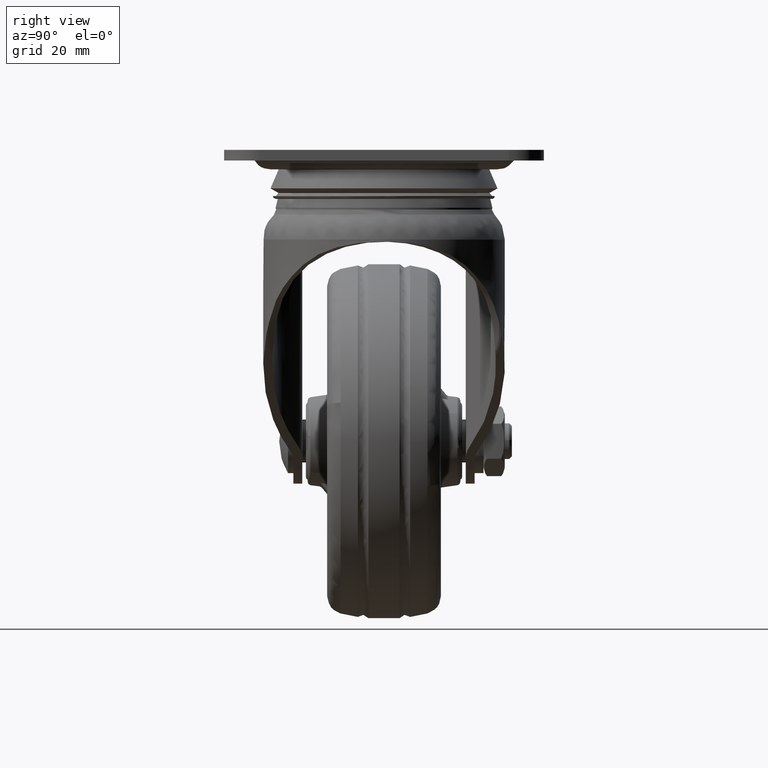
[diagram: clean part render]
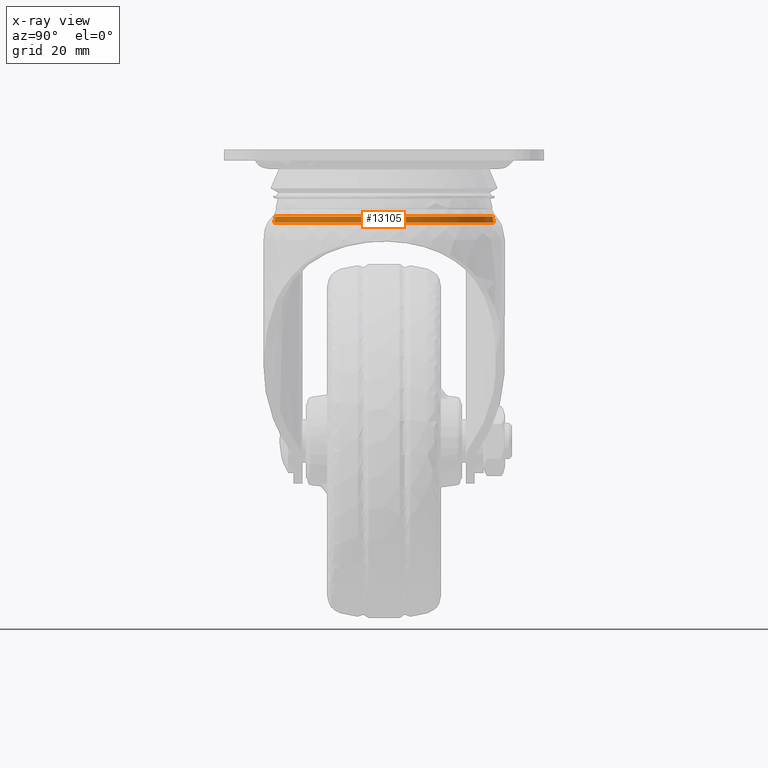
[diagram: x-ray — body ghosted, one internal face saturated and labeled with its STEP entity id]
A machine part, right view, then the same camera in x-ray: the body is ghosted and one INTERNAL B-rep face — a face not visible from any outside direction — is saturated and labeled: STEP entity #13105.
In plain terms, the highlighted face is a freeform B-spline surface patch.
Its self-contained STEP definition (entity closure, byte-faithful):
#12549=CARTESIAN_POINT('',(-1.892504725672829,30.942178751075449,-20.550011000014269));
#12550=VERTEX_POINT('',#12549);
#12564=CARTESIAN_POINT('',(31.0,0.0,-20.550011000000051));
#12565=VERTEX_POINT('',#12564);
#12566=CARTESIAN_POINT('',(-1.892504725672830,30.942178751075442,-20.550011000014269));
#12567=CARTESIAN_POINT('',(-0.947135662302610,31.000000000003158,-20.550011000014063));
#12568=CARTESIAN_POINT('',(-1.868053E-013,31.000000000003109,-20.550011000013850));
#12569=CARTESIAN_POINT('',(30.999999999999908,31.000000000001503,-20.550011000006737));
#12570=CARTESIAN_POINT('',(31.0,0.0,-20.550011000000051));
#12578=(BOUNDED_CURVE()B_SPLINE_CURVE(2,(#12566,#12567,#12568,#12569,#12570),.UNSPECIFIED.,.F.,.U.)B_SPLINE_CURVE_WITH_KNOTS((3,2,3),(0.239332962241455,0.250000000000000,0.500000000000000),.UNSPECIFIED.)CURVE()GEOMETRIC_REPRESENTATION_ITEM()RATIONAL_B_SPLINE_CURVE((0.976072041672101,0.987502787902780,1.0,0.707106781186548,1.0))REPRESENTATION_ITEM(''));
#12579=EDGE_CURVE('',#12550,#12565,#12578,.T.);
#12581=CARTESIAN_POINT('',(1.892504725672829,-30.942178751075449,-20.550011000014269));
#12582=VERTEX_POINT('',#12581);
#12583=CARTESIAN_POINT('',(31.0,0.0,-20.550011000000051));
#12584=CARTESIAN_POINT('',(31.000000000000110,-29.161888073991221,-20.550011000007171));
#12585=CARTESIAN_POINT('',(1.892504725672829,-30.942178751075446,-20.550011000014276));
#12593=(BOUNDED_CURVE()B_SPLINE_CURVE(2,(#12583,#12584,#12585),.UNSPECIFIED.,.F.,.U.)B_SPLINE_CURVE_WITH_KNOTS((3,3),(0.500000000000000,0.739332962241455),.UNSPECIFIED.)CURVE()GEOMETRIC_REPRESENTATION_ITEM()RATIONAL_B_SPLINE_CURVE((1.0,0.719603993283767,0.976072041672102))REPRESENTATION_ITEM(''));
#12594=EDGE_CURVE('',#12565,#12582,#12593,.T.);
#13003=CARTESIAN_POINT('',(1.868389924541956,-30.547905237961931,-18.800011000012329));
#13004=VERTEX_POINT('',#13003);
#13005=CARTESIAN_POINT('',(1.868389924541956,-30.547905237961931,-18.800011000012329));
#13006=CARTESIAN_POINT('',(1.892504725672829,-30.942178751075449,-20.550011000014269));
#13007=QUASI_UNIFORM_CURVE('',1,(#13005,#13006),.UNSPECIFIED.,.F.,.U.);
#13008=EDGE_CURVE('',#13004,#12582,#13007,.T.);
#13027=CARTESIAN_POINT('',(-1.868389924541956,30.547905237961931,-18.800011000012340));
#13028=VERTEX_POINT('',#13027);
#13042=CARTESIAN_POINT('',(-1.868389924541956,30.547905237961931,-18.800011000012340));
#13043=CARTESIAN_POINT('',(-1.892504725672829,30.942178751075449,-20.550011000014269));
#13044=QUASI_UNIFORM_CURVE('',1,(#13042,#13043),.UNSPECIFIED.,.F.,.U.);
#13045=EDGE_CURVE('',#13028,#12550,#13044,.T.);
#13051=CARTESIAN_POINT('',(-1.867787054434637,30.538048400136159,-18.756261000000091));
#13052=CARTESIAN_POINT('',(28.670261345701523,32.405835454570799,-18.756261000000091));
#13053=CARTESIAN_POINT('',(30.538048400136159,1.867787054434637,-18.756261000000091));
#13054=CARTESIAN_POINT('',(32.405835454570799,-28.670261345701523,-18.756261000000091));
#13055=CARTESIAN_POINT('',(1.867787054434637,-30.538048400136159,-18.756261000000091));
#13056=CARTESIAN_POINT('',(-1.893122667359215,30.952282009851420,-20.594854750000049));
#13057=CARTESIAN_POINT('',(29.059159342492197,32.845404677210624,-20.594854750000042));
#13058=CARTESIAN_POINT('',(30.952282009851420,1.893122667359215,-20.594854750000049));
#13059=CARTESIAN_POINT('',(32.845404677210624,-29.059159342492197,-20.594854750000042));
#13060=CARTESIAN_POINT('',(1.893122667359215,-30.952282009851420,-20.594854750000049));
#13068=(BOUNDED_SURFACE()B_SPLINE_SURFACE(2,1,((#13051,#13056),(#13052,#13057),(#13053,#13058),(#13054,#13059),(#13055,#13060)),.UNSPECIFIED.,.F.,.F.,.U.)B_SPLINE_SURFACE_WITH_KNOTS((3,2,3),(2,2),(0.0,51.379252642621182,102.758505285242410),(0.0,1.0),.UNSPECIFIED.)GEOMETRIC_REPRESENTATION_ITEM()RATIONAL_B_SPLINE_SURFACE(((1.0,1.0),(0.707106781186548,0.707106781186548),(1.0,1.0),(0.707106781186548,0.707106781186548),(1.0,1.0)))REPRESENTATION_ITEM('')SURFACE());
#13069=ORIENTED_EDGE('',*,*,#12594,.F.);
#13070=ORIENTED_EDGE('',*,*,#12579,.F.);
#13071=ORIENTED_EDGE('',*,*,#13045,.F.);
#13072=CARTESIAN_POINT('',(30.604989713075600,0.0,-18.800011000000101));
#13073=VERTEX_POINT('',#13072);
#13074=CARTESIAN_POINT('',(-1.868389924541956,30.547905237961935,-18.800011000012340));
#13075=CARTESIAN_POINT('',(-0.935067006499222,30.604989713078307,-18.800011000012162));
#13076=CARTESIAN_POINT('',(-1.577179E-013,30.604989713078272,-18.800011000011970));
#13077=CARTESIAN_POINT('',(30.604989713075533,30.604989713076890,-18.800011000005856));
#13078=CARTESIAN_POINT('',(30.604989713075600,0.0,-18.800011000000101));
#13086=(BOUNDED_CURVE()B_SPLINE_CURVE(2,(#13074,#13075,#13076,#13077,#13078),.UNSPECIFIED.,.F.,.U.)B_SPLINE_CURVE_WITH_KNOTS((3,2,3),(0.739332962241521,0.750000000000000,1.0),.UNSPECIFIED.)CURVE()GEOMETRIC_REPRESENTATION_ITEM()RATIONAL_B_SPLINE_CURVE((0.976072041672243,0.987502787902858,1.0,0.707106781186548,1.0))REPRESENTATION_ITEM(''));
#13087=EDGE_CURVE('',#13028,#13073,#13086,.T.);
#13088=ORIENTED_EDGE('',*,*,#13087,.T.);
#13089=CARTESIAN_POINT('',(30.604989713075600,0.0,-18.800011000000101));
#13090=CARTESIAN_POINT('',(30.604989713075682,-28.790299500603194,-18.800011000006219));
#13091=CARTESIAN_POINT('',(1.868389924541956,-30.547905237961931,-18.800011000012329));
#13099=(BOUNDED_CURVE()B_SPLINE_CURVE(2,(#13089,#13090,#13091),.UNSPECIFIED.,.F.,.U.)B_SPLINE_CURVE_WITH_KNOTS((3,3),(0.0,0.239332962241521),.UNSPECIFIED.)CURVE()GEOMETRIC_REPRESENTATION_ITEM()RATIONAL_B_SPLINE_CURVE((1.0,0.719603993283690,0.976072041672243))REPRESENTATION_ITEM(''));
#13100=EDGE_CURVE('',#13073,#13004,#13099,.T.);
#13101=ORIENTED_EDGE('',*,*,#13100,.T.);
#13102=ORIENTED_EDGE('',*,*,#13008,.T.);
#13103=EDGE_LOOP('',(#13069,#13070,#13071,#13088,#13101,#13102));
#13104=FACE_OUTER_BOUND('',#13103,.T.);
#13105=ADVANCED_FACE('',(#13104),#13068,.T.);